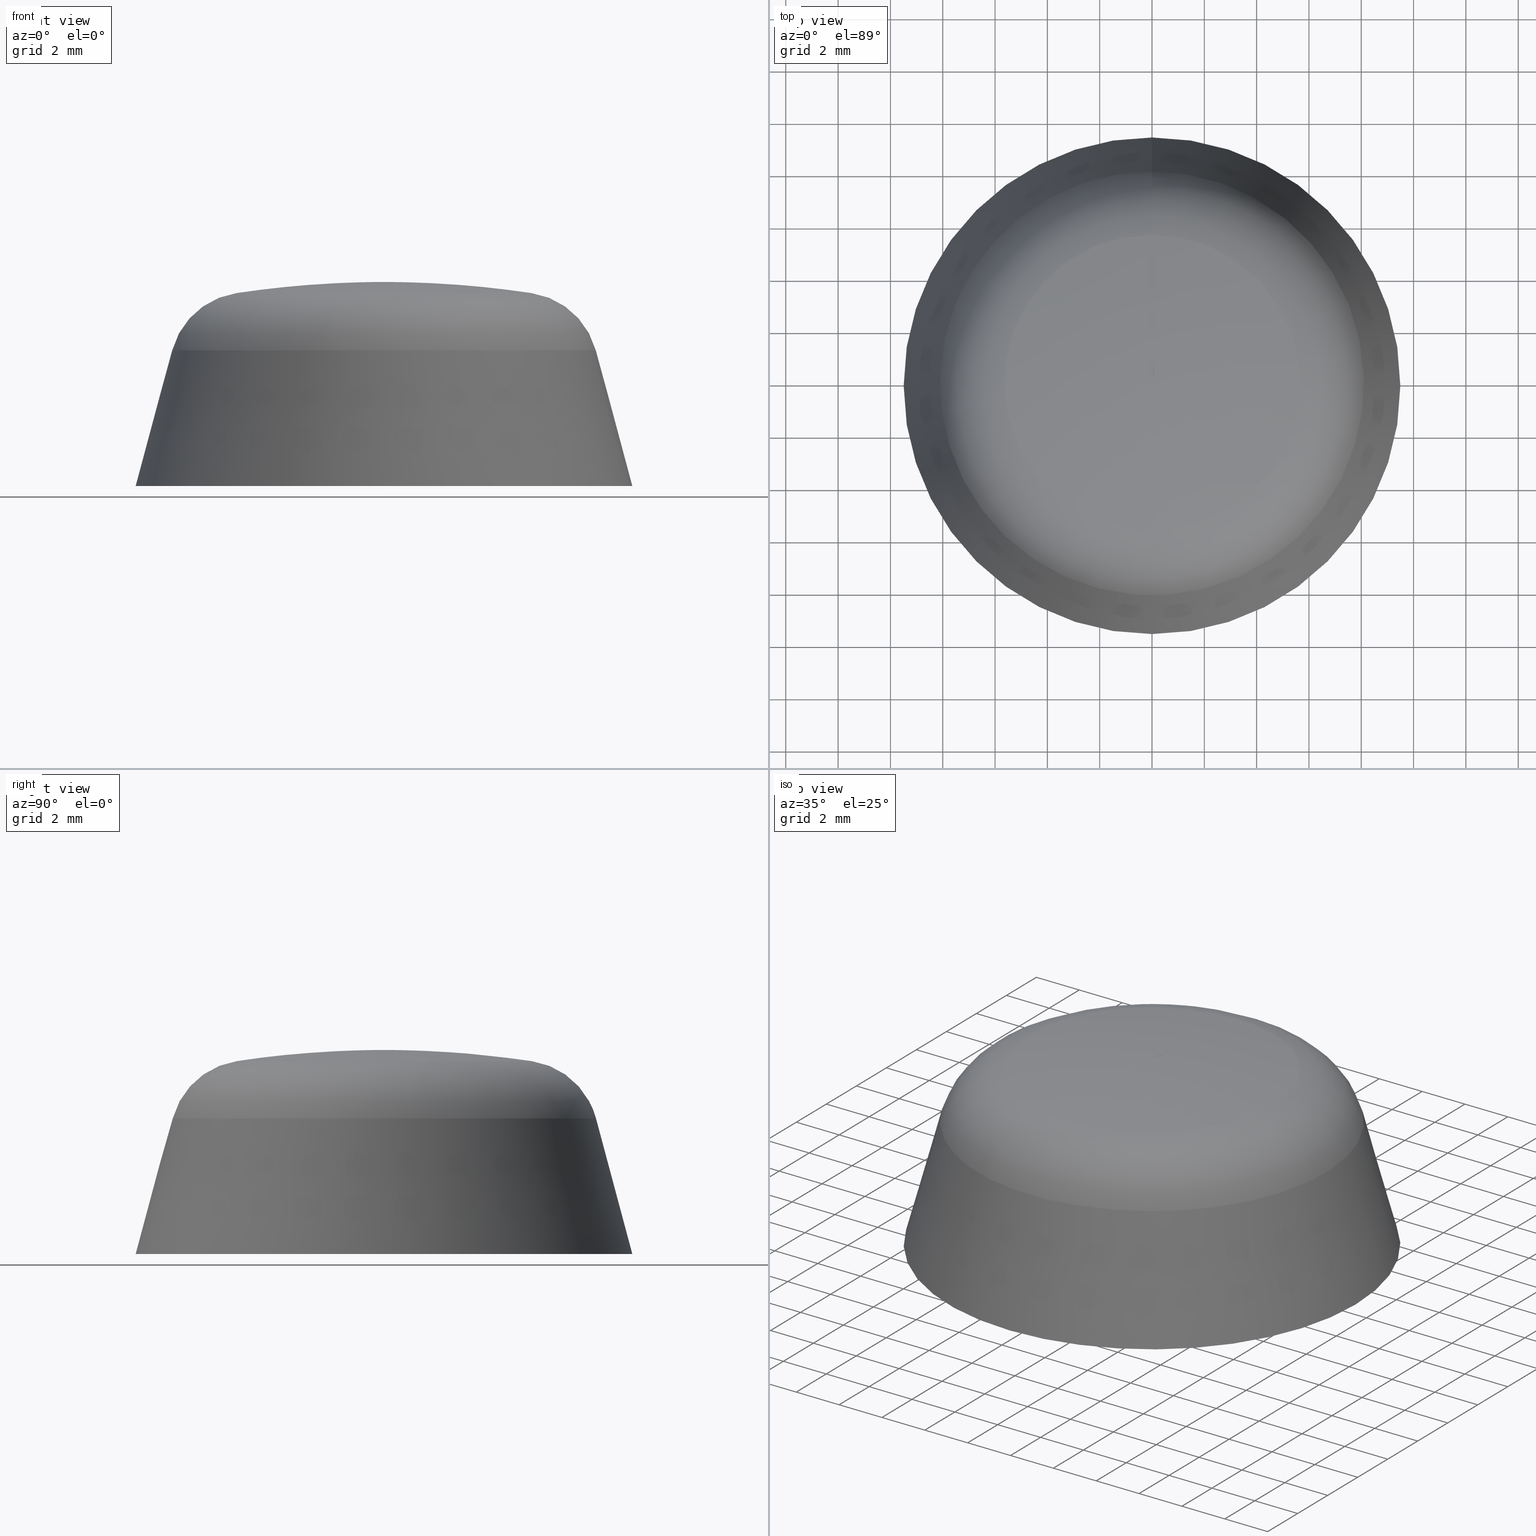
[diagram: canonical four-view strip — front | top / right | iso, engineering-drawing reading convention]
A machine part, canonical four-view strip (front | top / right | iso — engineering-drawing reading convention). The complete STEP part file that produces these views, byte-faithful:
ISO-10303-21;
HEADER;
FILE_DESCRIPTION( ( 'STEP AP203' ), '1' );
FILE_NAME( 'C:/Documents and Settings/JP/�f�X�N�g�b�v/�_�E�����[�h�pCAD�f�[�^/�{���g���σL���b�v/M8/M8.step', '2022-07-27T01:11:59', ( ' ' ), ( ' ' ), 'XStep 1.0', ' ', ' ' );
FILE_SCHEMA( ( 'CONFIG_CONTROL_DESIGN' ) );
ENDSEC;
DATA;
#1 = DESIGN_CONTEXT( '', #27, 'design' );
#2 = APPLICATION_PROTOCOL_DEFINITION( 'INTERNATIONAL STANDARD', 'config_control_design', 1994, #27 );
#3 = PRODUCT_CATEGORY_RELATIONSHIP( 'NONE', 'NONE', #28, #29 );
#4 = DATE_AND_TIME( #30, #31 );
#5 = DATE_TIME_ROLE( 'creation_date' );
#6 = DATE_TIME_ROLE( 'classification_date' );
#7 = PERSON_AND_ORGANIZATION_ROLE( 'creator' );
#8 = PERSON_AND_ORGANIZATION_ROLE( 'design_supplier' );
#9 = PERSON_AND_ORGANIZATION_ROLE( 'classification_officer' );
#10 = PERSON_AND_ORGANIZATION_ROLE( 'design_owner' );
#11 = APPROVAL_PERSON_ORGANIZATION( #32, #33, #34 );
#12 = APPROVAL_DATE_TIME( #4, #33 );
#13 = CC_DESIGN_APPROVAL( #33, ( #35, #36, #37 ) );
#14 = CC_DESIGN_DATE_AND_TIME_ASSIGNMENT( #4, #5, ( #37 ) );
#15 = CC_DESIGN_DATE_AND_TIME_ASSIGNMENT( #4, #6, ( #35 ) );
#16 = CC_DESIGN_PERSON_AND_ORGANIZATION_ASSIGNMENT( #32, #10, ( #38 ) );
#17 = CC_DESIGN_PERSON_AND_ORGANIZATION_ASSIGNMENT( #32, #7, ( #37 ) );
#18 = CC_DESIGN_PERSON_AND_ORGANIZATION_ASSIGNMENT( #32, #7, ( #36 ) );
#19 = CC_DESIGN_PERSON_AND_ORGANIZATION_ASSIGNMENT( #32, #8, ( #36 ) );
#20 = CC_DESIGN_SECURITY_CLASSIFICATION( #35, ( #36 ) );
#21 = CC_DESIGN_PERSON_AND_ORGANIZATION_ASSIGNMENT( #32, #9, ( #35 ) );
#22 = SHAPE_DEFINITION_REPRESENTATION( #39, #40 );
#23 =  ( GEOMETRIC_REPRESENTATION_CONTEXT( 3 )GLOBAL_UNCERTAINTY_ASSIGNED_CONTEXT( ( #43 ) )GLOBAL_UNIT_ASSIGNED_CONTEXT( ( #45, #46, #47 ) )REPRESENTATION_CONTEXT( 'NONE', 'WORKSPACE' ) );
#27 = APPLICATION_CONTEXT( 'CONFIGURATION CONTROLLED 3D DESIGNS OF MECHANICAL PARTS AND ASSEMBLIES' );
#28 = PRODUCT_CATEGORY( 'part', 'NONE' );
#29 = PRODUCT_RELATED_PRODUCT_CATEGORY( 'detail', ' ', ( #38 ) );
#30 = CALENDAR_DATE( 2022, 27, 6 );
#31 = LOCAL_TIME( 10, 11, 59.0000000000000, #49 );
#32 = PERSON_AND_ORGANIZATION( #50, #51 );
#33 = APPROVAL( #52, 'SOLID MODEL' );
#34 = APPROVAL_ROLE( 'APPROVED' );
#35 = SECURITY_CLASSIFICATION( '', '', #53 );
#36 = PRODUCT_DEFINITION_FORMATION_WITH_SPECIFIED_SOURCE( ' ', 'NONE', #38, .NOT_KNOWN. );
#37 = PRODUCT_DEFINITION( 'NONE', 'NONE', #36, #1 );
#38 = PRODUCT( '1', '1', 'PART-1-DESC', ( #54 ) );
#39 = PRODUCT_DEFINITION_SHAPE( 'NONE', 'NONE', #37 );
#40 = ADVANCED_BREP_SHAPE_REPRESENTATION( '1', ( #55, #56 ), #23 );
#43 = UNCERTAINTY_MEASURE_WITH_UNIT( LENGTH_MEASURE( 0.00100000000000000 ), #45, '', '' );
#45 =  ( CONVERSION_BASED_UNIT( 'MILLIMETRE', #59 )LENGTH_UNIT(  )NAMED_UNIT( #62 ) );
#46 =  ( NAMED_UNIT( #64 )PLANE_ANGLE_UNIT(  )SI_UNIT( $, .RADIAN. ) );
#47 =  ( NAMED_UNIT( #64 )SOLID_ANGLE_UNIT(  )SI_UNIT( $, .STERADIAN. ) );
#49 = COORDINATED_UNIVERSAL_TIME_OFFSET( 9, 0, .AHEAD. );
#50 = PERSON( '', 'UNSPECIFIED', $, $, $, $ );
#51 = ORGANIZATION( 'UNSPECIFIED', 'UNSPECIFIED', 'UNSPECIFIED' );
#52 = APPROVAL_STATUS( 'approved' );
#53 = SECURITY_CLASSIFICATION_LEVEL( 'unclassified' );
#54 = MECHANICAL_CONTEXT( '', #27, 'mechanical' );
#55 = MANIFOLD_SOLID_BREP( '1', #70 );
#56 = AXIS2_PLACEMENT_3D( '', #71, #72, #73 );
#59 = LENGTH_MEASURE_WITH_UNIT( LENGTH_MEASURE( 1.00000000000000 ), #74 );
#62 = DIMENSIONAL_EXPONENTS( 1.00000000000000, 0.000000000000000, 0.000000000000000, 0.000000000000000, 0.000000000000000, 0.000000000000000, 0.000000000000000 );
#64 = DIMENSIONAL_EXPONENTS( 0.000000000000000, 0.000000000000000, 0.000000000000000, 0.000000000000000, 0.000000000000000, 0.000000000000000, 0.000000000000000 );
#70 = CLOSED_SHELL( '', ( #75, #76, #77, #78, #79, #80, #81, #82, #83 ) );
#71 = CARTESIAN_POINT( '', ( 0.000000000000000, 0.000000000000000, 0.000000000000000 ) );
#72 = DIRECTION( '', ( 0.000000000000000, 0.000000000000000, 1.00000000000000 ) );
#73 = DIRECTION( '', ( 1.00000000000000, 0.000000000000000, 0.000000000000000 ) );
#74 =  ( NAMED_UNIT( #62 )LENGTH_UNIT(  )SI_UNIT( .MILLI., .METRE. ) );
#75 = ADVANCED_FACE( '', ( #85, #86 ), #87, .T. );
#76 = ADVANCED_FACE( '', ( #88 ), #89, .T. );
#77 = ADVANCED_FACE( '', ( #90, #91 ), #92, .F. );
#78 = ADVANCED_FACE( '', ( #93, #94 ), #95, .F. );
#79 = ADVANCED_FACE( '', ( #96, #97 ), #98, .T. );
#80 = ADVANCED_FACE( '', ( #99, #100 ), #101, .F. );
#81 = ADVANCED_FACE( '', ( #102, #103 ), #104, .T. );
#82 = ADVANCED_FACE( '', ( #105, #106 ), #107, .T. );
#83 = ADVANCED_FACE( '', ( #108, #109 ), #110, .T. );
#85 = FACE_BOUND( '', #111, .T. );
#86 = FACE_OUTER_BOUND( '', #112, .T. );
#87 = ( B_SPLINE_SURFACE( 3, 3, ( ( #114, #115, #116, #117, #118, #119, #120 ), ( #121, #122, #123, #124, #125, #126, #127 ), ( #128, #129, #130, #131, #132, #133, #134 ), ( #135, #136, #137, #138, #139, #140, #141 ) ), .UNSPECIFIED., .F., .T., .F. )B_SPLINE_SURFACE_WITH_KNOTS( ( 4, 4 ), ( 4, 3, 4 ), ( 0.000000000000000, 6.28318530717959 ), ( -1.56945058362842, -1.49579099199942, -1.42213140037043 ), .UNSPECIFIED. )RATIONAL_B_SPLINE_SURFACE( ( ( 1.00000000000000, 0.333333333333333, 0.333333333333333, 1.00000000000000, 0.333333333333333, 0.333333333333333, 1.00000000000000 ), ( 0.998192239111499, 0.332730746370500, 0.332730746370500, 0.998192239111499, 0.332730746370500, 0.332730746370500, 0.998192239111499 ), ( 0.998192239111499, 0.332730746370500, 0.332730746370500, 0.998192239111499, 0.332730746370500, 0.332730746370500, 0.998192239111499 ), ( 1.00000000000000, 0.333333333333333, 0.333333333333333, 1.00000000000000, 0.333333333333333, 0.333333333333333, 1.00000000000000 ) ) )BOUNDED_SURFACE(  )REPRESENTATION_ITEM( '' )GEOMETRIC_REPRESENTATION_ITEM(  )SURFACE(  ) );
#88 = FACE_OUTER_BOUND( '', #148, .T. );
#89 = PLANE( '', #149 );
#90 = FACE_OUTER_BOUND( '', #150, .T. );
#91 = FACE_BOUND( '', #151, .T. );
#92 = CONICAL_SURFACE( '', #152, 6.40000000000001, 1.04719755119660 );
#93 = FACE_OUTER_BOUND( '', #153, .T. );
#94 = FACE_BOUND( '', #154, .T. );
#95 = CONICAL_SURFACE( '', #155, 7.12184121559185, 0.0523598775598277 );
#96 = FACE_OUTER_BOUND( '', #156, .T. );
#97 = FACE_BOUND( '', #157, .T. );
#98 = PLANE( '', #158 );
#99 = FACE_OUTER_BOUND( '', #159, .T. );
#100 = FACE_BOUND( '', #160, .T. );
#101 = CONICAL_SURFACE( '', #161, 8.24882937312424, 0.0523598775598382 );
#102 = FACE_OUTER_BOUND( '', #162, .T. );
#103 = FACE_OUTER_BOUND( '', #163, .T. );
#104 = TOROIDAL_SURFACE( '', #164, 5.20637497662991, 3.00000000000000 );
#105 = FACE_BOUND( '', #165, .T. );
#106 = FACE_OUTER_BOUND( '', #166, .T. );
#107 = CONICAL_SURFACE( '', #167, 9.49344667569824, 0.261799387799151 );
#108 = FACE_OUTER_BOUND( '', #168, .T. );
#109 = FACE_BOUND( '', #169, .T. );
#110 = PLANE( '', #170 );
#111 = VERTEX_LOOP( '', #171 );
#112 = EDGE_LOOP( '', ( #172 ) );
#114 = CARTESIAN_POINT( '', ( 0.000000000000000, 5.65072872926940, 7.37536860387088 ) );
#115 = CARTESIAN_POINT( '', ( 11.3014574585388, 5.65072872926940, 7.37536860387088 ) );
#116 = CARTESIAN_POINT( '', ( 11.3014574585388, -5.65072872926940, 7.37536860387088 ) );
#117 = CARTESIAN_POINT( '', ( 0.000000000000000, -5.65072872926940, 7.37536860387088 ) );
#118 = CARTESIAN_POINT( '', ( -11.3014574585388, -5.65072872926940, 7.37536860387088 ) );
#119 = CARTESIAN_POINT( '', ( -11.3014574585388, 5.65072872926940, 7.37536860387088 ) );
#120 = CARTESIAN_POINT( '', ( 0.000000000000000, 5.65072872926940, 7.37536860387088 ) );
#121 = CARTESIAN_POINT( '', ( 0.000000000000000, 3.77929359492807, 7.65565330096397 ) );
#122 = CARTESIAN_POINT( '', ( 7.55858718985615, 3.77929359492807, 7.65565330096397 ) );
#123 = CARTESIAN_POINT( '', ( 7.55858718985615, -3.77929359492807, 7.65565330096398 ) );
#124 = CARTESIAN_POINT( '', ( 0.000000000000000, -3.77929359492807, 7.65565330096397 ) );
#125 = CARTESIAN_POINT( '', ( -7.55858718985615, -3.77929359492807, 7.65565330096398 ) );
#126 = CARTESIAN_POINT( '', ( -7.55858718985615, 3.77929359492807, 7.65565330096398 ) );
#127 = CARTESIAN_POINT( '', ( 0.000000000000000, 3.77929359492807, 7.65565330096397 ) );
#128 = CARTESIAN_POINT( '', ( 0.000000000000000, 1.89230612970154, 7.79745344041976 ) );
#129 = CARTESIAN_POINT( '', ( 3.78461225940309, 1.89230612970154, 7.79745344041976 ) );
#130 = CARTESIAN_POINT( '', ( 3.78461225940309, -1.89230612970154, 7.79745344041976 ) );
#131 = CARTESIAN_POINT( '', ( 0.000000000000000, -1.89230612970154, 7.79745344041976 ) );
#132 = CARTESIAN_POINT( '', ( -3.78461225940309, -1.89230612970154, 7.79745344041976 ) );
#133 = CARTESIAN_POINT( '', ( -3.78461225940309, 1.89230612970154, 7.79745344041976 ) );
#134 = CARTESIAN_POINT( '', ( 0.000000000000000, 1.89230612970154, 7.79745344041976 ) );
#135 = CARTESIAN_POINT( '', ( 0.000000000000000, 3.49655200626575E-015, 7.79999999999999 ) );
#136 = CARTESIAN_POINT( '', ( 6.77781283537976E-015, 3.49655200626575E-015, 7.80000000000000 ) );
#137 = CARTESIAN_POINT( '', ( 6.77781283537976E-015, -3.28126082911401E-015, 7.80000000000000 ) );
#138 = CARTESIAN_POINT( '', ( 0.000000000000000, -3.28126082911401E-015, 7.79999999999999 ) );
#139 = CARTESIAN_POINT( '', ( -6.77781283537976E-015, -3.28126082911401E-015, 7.80000000000000 ) );
#140 = CARTESIAN_POINT( '', ( -6.77781283537976E-015, 3.49655200626575E-015, 7.80000000000000 ) );
#141 = CARTESIAN_POINT( '', ( 0.000000000000000, 3.49655200626575E-015, 7.79999999999999 ) );
#148 = EDGE_LOOP( '', ( #173 ) );
#149 = AXIS2_PLACEMENT_3D( '', #174, #175, #176 );
#150 = EDGE_LOOP( '', ( #177 ) );
#151 = EDGE_LOOP( '', ( #178 ) );
#152 = AXIS2_PLACEMENT_3D( '', #179, #180, #181 );
#153 = EDGE_LOOP( '', ( #182 ) );
#154 = EDGE_LOOP( '', ( #183 ) );
#155 = AXIS2_PLACEMENT_3D( '', #184, #185, #186 );
#156 = EDGE_LOOP( '', ( #187 ) );
#157 = EDGE_LOOP( '', ( #188 ) );
#158 = AXIS2_PLACEMENT_3D( '', #189, #190, #191 );
#159 = EDGE_LOOP( '', ( #192 ) );
#160 = EDGE_LOOP( '', ( #193 ) );
#161 = AXIS2_PLACEMENT_3D( '', #194, #195, #196 );
#162 = EDGE_LOOP( '', ( #197 ) );
#163 = EDGE_LOOP( '', ( #198 ) );
#164 = AXIS2_PLACEMENT_3D( '', #199, #200, #201 );
#165 = EDGE_LOOP( '', ( #202 ) );
#166 = EDGE_LOOP( '', ( #203 ) );
#167 = AXIS2_PLACEMENT_3D( '', #204, #205, #206 );
#168 = EDGE_LOOP( '', ( #207 ) );
#169 = EDGE_LOOP( '', ( #208 ) );
#170 = AXIS2_PLACEMENT_3D( '', #209, #210, #211 );
#171 = VERTEX_POINT( '', #212 );
#172 = ORIENTED_EDGE( '', *, *, #213, .F. );
#173 = ORIENTED_EDGE( '', *, *, #214, .T. );
#174 = CARTESIAN_POINT( '', ( 0.000000000000000, -1.84600998777568E-031, 6.00000000000000 ) );
#175 = DIRECTION( '', ( 0.000000000000000, -6.12303176911189E-017, -1.00000000000000 ) );
#176 = DIRECTION( '', ( 0.000000000000000, 1.00000000000000, -6.12303176911189E-017 ) );
#177 = ORIENTED_EDGE( '', *, *, #215, .T. );
#178 = ORIENTED_EDGE( '', *, *, #214, .F. );
#179 = CARTESIAN_POINT( '', ( 0.000000000000000, -2.39945715491542E-032, 6.00000000000000 ) );
#180 = DIRECTION( '', ( 0.000000000000000, -6.12303176911189E-017, -1.00000000000000 ) );
#181 = DIRECTION( '', ( 0.000000000000000, 1.00000000000000, -6.12303176911189E-017 ) );
#182 = ORIENTED_EDGE( '', *, *, #216, .T. );
#183 = ORIENTED_EDGE( '', *, *, #215, .F. );
#184 = CARTESIAN_POINT( '', ( 0.000000000000000, -2.55180545282442E-017, 5.58324477986588 ) );
#185 = DIRECTION( '', ( 0.000000000000000, -6.12303176911189E-017, -1.00000000000000 ) );
#186 = DIRECTION( '', ( 0.000000000000000, 1.00000000000000, -6.12303176911189E-017 ) );
#187 = ORIENTED_EDGE( '', *, *, #217, .T. );
#188 = ORIENTED_EDGE( '', *, *, #216, .F. );
#189 = CARTESIAN_POINT( '', ( -1.34550488864891E-015, -7.32482937312426, 1.71000000000000 ) );
#190 = DIRECTION( '', ( 0.000000000000000, -6.12303176911189E-017, -1.00000000000000 ) );
#191 = DIRECTION( '', ( 0.000000000000000, 1.00000000000000, -6.12303176911189E-017 ) );
#192 = ORIENTED_EDGE( '', *, *, #218, .T. );
#193 = ORIENTED_EDGE( '', *, *, #217, .F. );
#194 = CARTESIAN_POINT( '', ( 0.000000000000000, -2.62678062894900E-016, 1.71000000000000 ) );
#195 = DIRECTION( '', ( 0.000000000000000, -6.12303176911189E-017, -1.00000000000000 ) );
#196 = DIRECTION( '', ( 0.000000000000000, 1.00000000000000, -6.12303176911189E-017 ) );
#197 = ORIENTED_EDGE( '', *, *, #213, .T. );
#198 = ORIENTED_EDGE( '', *, *, #219, .F. );
#199 = CARTESIAN_POINT( '', ( 0.000000000000000, 0.000000000000000, 4.40845948114479 ) );
#200 = DIRECTION( '', ( 0.000000000000000, -6.12303176911189E-017, -1.00000000000000 ) );
#201 = DIRECTION( '', ( 0.000000000000000, 1.00000000000000, -6.12303176911189E-017 ) );
#202 = ORIENTED_EDGE( '', *, *, #219, .T. );
#203 = ORIENTED_EDGE( '', *, *, #220, .F. );
#204 = CARTESIAN_POINT( '', ( 0.000000000000000, -3.67381906146713E-016, -8.67361737988404E-016 ) );
#205 = DIRECTION( '', ( 0.000000000000000, -6.12303176911189E-017, -1.00000000000000 ) );
#206 = DIRECTION( '', ( 0.000000000000000, 1.00000000000000, -6.12303176911189E-017 ) );
#207 = ORIENTED_EDGE( '', *, *, #220, .T. );
#208 = ORIENTED_EDGE( '', *, *, #218, .F. );
#209 = CARTESIAN_POINT( '', ( -1.53169721701037E-015, -8.33844667569823, 0.000000000000000 ) );
#210 = DIRECTION( '', ( 0.000000000000000, -6.12303176911189E-017, -1.00000000000000 ) );
#211 = DIRECTION( '', ( 0.000000000000000, 1.00000000000000, -6.12303176911189E-017 ) );
#212 = CARTESIAN_POINT( '', ( -2.02454197445988E-032, 0.000000000000000, 7.80000000000000 ) );
#213 = EDGE_CURVE( '', #221, #221, #222, .T. );
#214 = EDGE_CURVE( '', #223, #223, #224, .T. );
#215 = EDGE_CURVE( '', #225, #225, #226, .T. );
#216 = EDGE_CURVE( '', #227, #227, #228, .T. );
#217 = EDGE_CURVE( '', #229, #229, #230, .T. );
#218 = EDGE_CURVE( '', #231, #231, #232, .T. );
#219 = EDGE_CURVE( '', #233, #233, #234, .T. );
#220 = EDGE_CURVE( '', #235, #235, #236, .T. );
#221 = VERTEX_POINT( '', #237 );
#222 = CIRCLE( '', #238, 5.65072872926940 );
#223 = VERTEX_POINT( '', #239 );
#224 = CIRCLE( '', #240, 6.40000000000001 );
#225 = VERTEX_POINT( '', #241 );
#226 = CIRCLE( '', #242, 7.12184121559185 );
#227 = VERTEX_POINT( '', #243 );
#228 = CIRCLE( '', #244, 7.32482937312425 );
#229 = VERTEX_POINT( '', #245 );
#230 = CIRCLE( '', #246, 8.24882937312424 );
#231 = VERTEX_POINT( '', #247 );
#232 = CIRCLE( '', #248, 8.33844667569825 );
#233 = VERTEX_POINT( '', #249 );
#234 = CIRCLE( '', #250, 8.10415245549711 );
#235 = VERTEX_POINT( '', #251 );
#236 = CIRCLE( '', #252, 9.49344667569824 );
#237 = CARTESIAN_POINT( '', ( 0.000000000000000, 5.65072872926940, 7.37536860387087 ) );
#238 = AXIS2_PLACEMENT_3D( '', #253, #254, #255 );
#239 = CARTESIAN_POINT( '', ( 0.000000000000000, 6.40000000000001, 6.00000000000000 ) );
#240 = AXIS2_PLACEMENT_3D( '', #256, #257, #258 );
#241 = CARTESIAN_POINT( '', ( 0.000000000000000, 7.12184121559185, 5.58324477986588 ) );
#242 = AXIS2_PLACEMENT_3D( '', #259, #260, #261 );
#243 = CARTESIAN_POINT( '', ( 0.000000000000000, 7.32482937312425, 1.71000000000001 ) );
#244 = AXIS2_PLACEMENT_3D( '', #262, #263, #264 );
#245 = CARTESIAN_POINT( '', ( 0.000000000000000, 8.24882937312424, 1.71000000000000 ) );
#246 = AXIS2_PLACEMENT_3D( '', #265, #266, #267 );
#247 = CARTESIAN_POINT( '', ( 0.000000000000000, 8.33844667569825, -1.37792747699186E-015 ) );
#248 = AXIS2_PLACEMENT_3D( '', #268, #269, #270 );
#249 = CARTESIAN_POINT( '', ( 0.000000000000000, 8.10415245549711, 5.18491661645236 ) );
#250 = AXIS2_PLACEMENT_3D( '', #271, #272, #273 );
#251 = CARTESIAN_POINT( '', ( 0.000000000000000, 9.49344667569824, -1.44864849392510E-015 ) );
#252 = AXIS2_PLACEMENT_3D( '', #274, #275, #276 );
#253 = CARTESIAN_POINT( '', ( 0.000000000000000, 8.42142565574037E-017, 7.37536860387087 ) );
#254 = DIRECTION( '', ( 0.000000000000000, -6.12303176911189E-017, -1.00000000000000 ) );
#255 = DIRECTION( '', ( 0.000000000000000, 1.00000000000000, -6.12303176911189E-017 ) );
#256 = CARTESIAN_POINT( '', ( 0.000000000000000, -2.39945715491542E-032, 6.00000000000000 ) );
#257 = DIRECTION( '', ( 0.000000000000000, -6.12303176911189E-017, -1.00000000000000 ) );
#258 = DIRECTION( '', ( 0.000000000000000, 1.00000000000000, -6.12303176911189E-017 ) );
#259 = CARTESIAN_POINT( '', ( 0.000000000000000, -2.55180545282442E-017, 5.58324477986588 ) );
#260 = DIRECTION( '', ( 0.000000000000000, -6.12303176911189E-017, -1.00000000000000 ) );
#261 = DIRECTION( '', ( 0.000000000000000, 1.00000000000000, -6.12303176911189E-017 ) );
#262 = CARTESIAN_POINT( '', ( 0.000000000000000, -2.62678062894899E-016, 1.71000000000001 ) );
#263 = DIRECTION( '', ( 0.000000000000000, -6.12303176911189E-017, -1.00000000000000 ) );
#264 = DIRECTION( '', ( 0.000000000000000, 1.00000000000000, -6.12303176911189E-017 ) );
#265 = CARTESIAN_POINT( '', ( 0.000000000000000, -2.62678062894900E-016, 1.71000000000000 ) );
#266 = DIRECTION( '', ( 0.000000000000000, -6.12303176911189E-017, -1.00000000000000 ) );
#267 = DIRECTION( '', ( 0.000000000000000, 1.00000000000000, -6.12303176911189E-017 ) );
#268 = CARTESIAN_POINT( '', ( 0.000000000000000, -3.67381906146713E-016, -8.67361737988404E-016 ) );
#269 = DIRECTION( '', ( 0.000000000000000, -6.12303176911189E-017, -1.00000000000000 ) );
#270 = DIRECTION( '', ( 0.000000000000000, 1.00000000000000, -6.12303176911189E-017 ) );
#271 = CARTESIAN_POINT( '', ( 0.000000000000000, -4.99078145193743E-017, 5.18491661645236 ) );
#272 = DIRECTION( '', ( 0.000000000000000, -6.12303176911189E-017, -1.00000000000000 ) );
#273 = DIRECTION( '', ( 0.000000000000000, 1.00000000000000, -6.12303176911189E-017 ) );
#274 = CARTESIAN_POINT( '', ( 0.000000000000000, -3.67381906146713E-016, -8.67361737988404E-016 ) );
#275 = DIRECTION( '', ( 0.000000000000000, -6.12303176911189E-017, -1.00000000000000 ) );
#276 = DIRECTION( '', ( 0.000000000000000, 1.00000000000000, -6.12303176911189E-017 ) );
ENDSEC;
END-ISO-10303-21;
